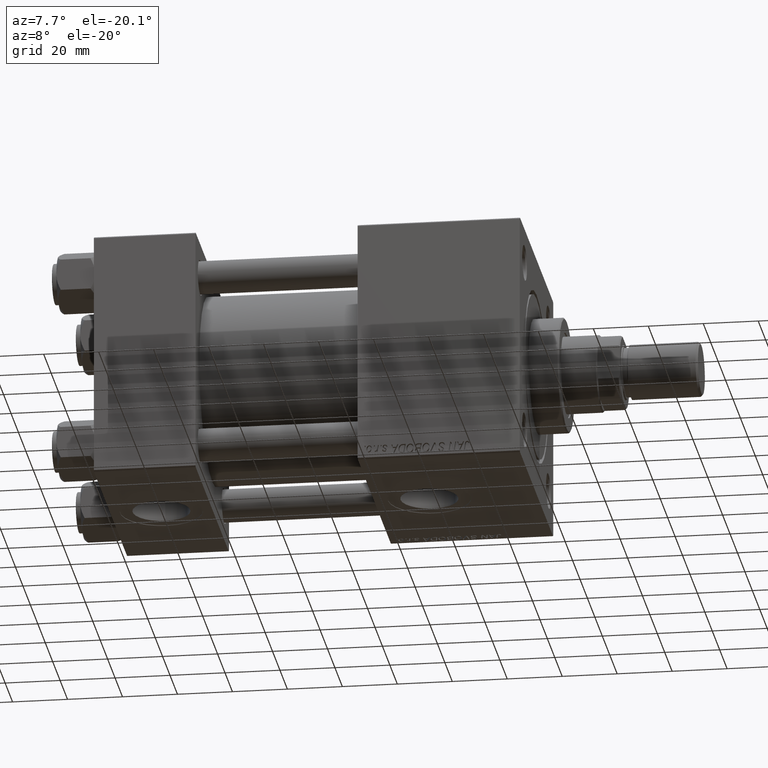
[diagram: clean part render]
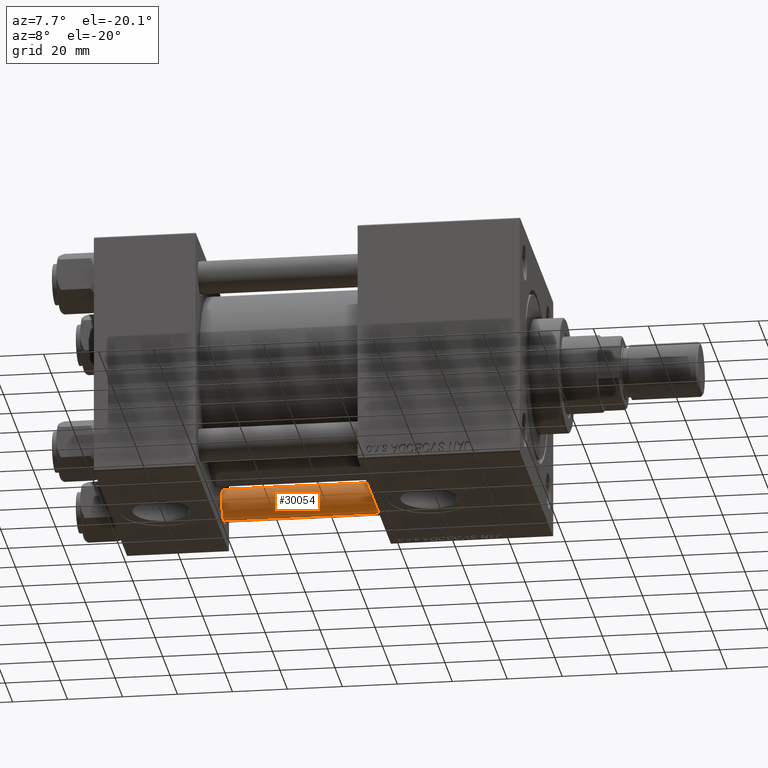
[diagram: same view with one face highlighted and labeled with its STEP entity id]
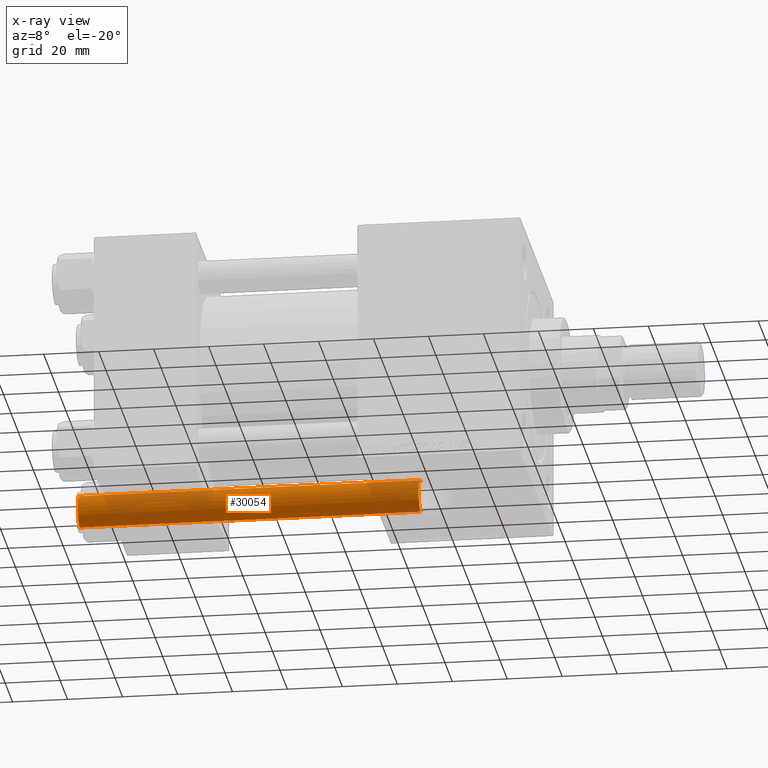
[diagram: x-ray of the same camera — body ghosted, the highlighted face saturated]
A machine part, auxiliary view. The second image highlights one B-rep face of the part: STEP entity #30054.
The next image is the same camera in x-ray: the body ghosted, the highlighted face saturated — about 23% of this face is hidden behind the body in this view.
In plain terms, the highlighted cylindrical surface (edge-blend (fillet) strip) has radius 6 mm, axis along (1, -0, 0).
Its self-contained STEP definition (entity closure, byte-faithful):
#411 = DIRECTION ( 'NONE',  ( 1.000000000000000000, 0.000000000000000000, 0.000000000000000000 ) ) ;
#1565 = EDGE_CURVE ( 'NONE', #15862, #3488, #48188, .T. ) ;
#3488 = VERTEX_POINT ( 'NONE', #40360 ) ;
#3522 = CARTESIAN_POINT ( 'NONE',  ( 0.000000000000000000, 0.000000000000000000, 0.4999999999999865663 ) ) ;
#4857 = AXIS2_PLACEMENT_3D ( 'NONE', #24715, #20880, #36527 ) ;
#5502 = FACE_OUTER_BOUND ( 'NONE', #26506, .T. ) ;
#6045 = ORIENTED_EDGE ( 'NONE', *, *, #10294, .T. ) ;
#6313 = EDGE_CURVE ( 'NONE', #3488, #10793, #40797, .T. ) ;
#6565 = CARTESIAN_POINT ( 'NONE',  ( 6.000000000000000888, 7.347880794884120722E-16, 125.0000000000000000 ) ) ;
#7285 = ORIENTED_EDGE ( 'NONE', *, *, #42248, .F. ) ;
#7524 = CIRCLE ( 'NONE', #15720, 6.000000000000000888 ) ;
#10294 = EDGE_CURVE ( 'NONE', #10793, #24649, #7524, .T. ) ;
#10793 = VERTEX_POINT ( 'NONE', #25960 ) ;
#15720 = AXIS2_PLACEMENT_3D ( 'NONE', #3522, #49424, #19150 ) ;
#15862 = VERTEX_POINT ( 'NONE', #31178 ) ;
#17715 = CARTESIAN_POINT ( 'NONE',  ( -6.000000000000000888, 0.000000000000000000, 125.0000000000000000 ) ) ;
#18868 = VECTOR ( 'NONE', #37722, 1000.000000000000000 ) ;
#19150 = DIRECTION ( 'NONE',  ( 1.000000000000000000, 0.000000000000000000, 0.000000000000000000 ) ) ;
#20880 = DIRECTION ( 'NONE',  ( -0.000000000000000000, -0.000000000000000000, -1.000000000000000000 ) ) ;
#23966 = DIRECTION ( 'NONE',  ( 0.000000000000000000, 0.000000000000000000, -1.000000000000000000 ) ) ;
#24649 = VERTEX_POINT ( 'NONE', #42042 ) ;
#24715 = CARTESIAN_POINT ( 'NONE',  ( 0.000000000000000000, 0.000000000000000000, 125.0000000000000000 ) ) ;
#25148 = ORIENTED_EDGE ( 'NONE', *, *, #6313, .T. ) ;
#25960 = CARTESIAN_POINT ( 'NONE',  ( -6.000000000000000888, 0.000000000000000000, 0.4999999999999865663 ) ) ;
#26506 = EDGE_LOOP ( 'NONE', ( #7285, #33213, #25148, #6045 ) ) ;
#30054 = ADVANCED_FACE ( 'NONE', ( #5502 ), #44715, .T. ) ;
#30133 = LINE ( 'NONE', #6565, #42787 ) ;
#31178 = CARTESIAN_POINT ( 'NONE',  ( 6.000000000000000888, 7.347880794884120722E-16, 124.5000000000000000 ) ) ;
#33213 = ORIENTED_EDGE ( 'NONE', *, *, #1565, .T. ) ;
#34241 = DIRECTION ( 'NONE',  ( -0.000000000000000000, -0.000000000000000000, -1.000000000000000000 ) ) ;
#36527 = DIRECTION ( 'NONE',  ( -1.000000000000000000, 0.000000000000000000, 0.000000000000000000 ) ) ;
#37722 = DIRECTION ( 'NONE',  ( -0.000000000000000000, -0.000000000000000000, -1.000000000000000000 ) ) ;
#39353 = CARTESIAN_POINT ( 'NONE',  ( 0.000000000000000000, 0.000000000000000000, 124.5000000000000000 ) ) ;
#40360 = CARTESIAN_POINT ( 'NONE',  ( -6.000000000000000888, 0.000000000000000000, 124.5000000000000000 ) ) ;
#40797 = LINE ( 'NONE', #17715, #18868 ) ;
#42042 = CARTESIAN_POINT ( 'NONE',  ( 6.000000000000000888, 7.347880794884120722E-16, 0.4999999999999865663 ) ) ;
#42248 = EDGE_CURVE ( 'NONE', #15862, #24649, #30133, .T. ) ;
#42787 = VECTOR ( 'NONE', #34241, 1000.000000000000000 ) ;
#44715 = CYLINDRICAL_SURFACE ( 'NONE', #4857, 6.000000000000000888 ) ;
#48188 = CIRCLE ( 'NONE', #48289, 6.000000000000000888 ) ;
#48289 = AXIS2_PLACEMENT_3D ( 'NONE', #39353, #23966, #411 ) ;
#49424 = DIRECTION ( 'NONE',  ( -0.000000000000000000, -0.000000000000000000, 1.000000000000000000 ) ) ;